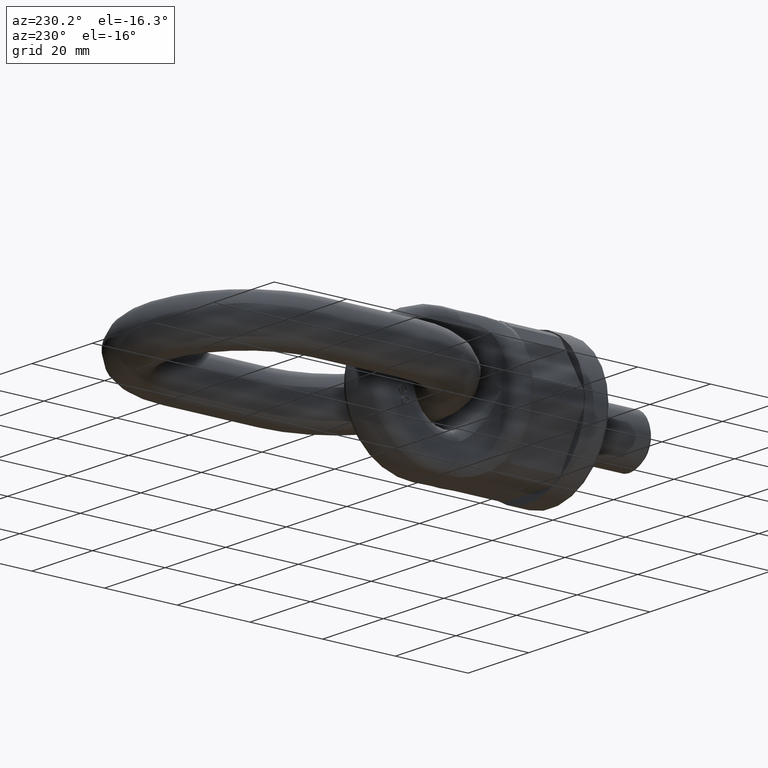
[diagram: clean part render]
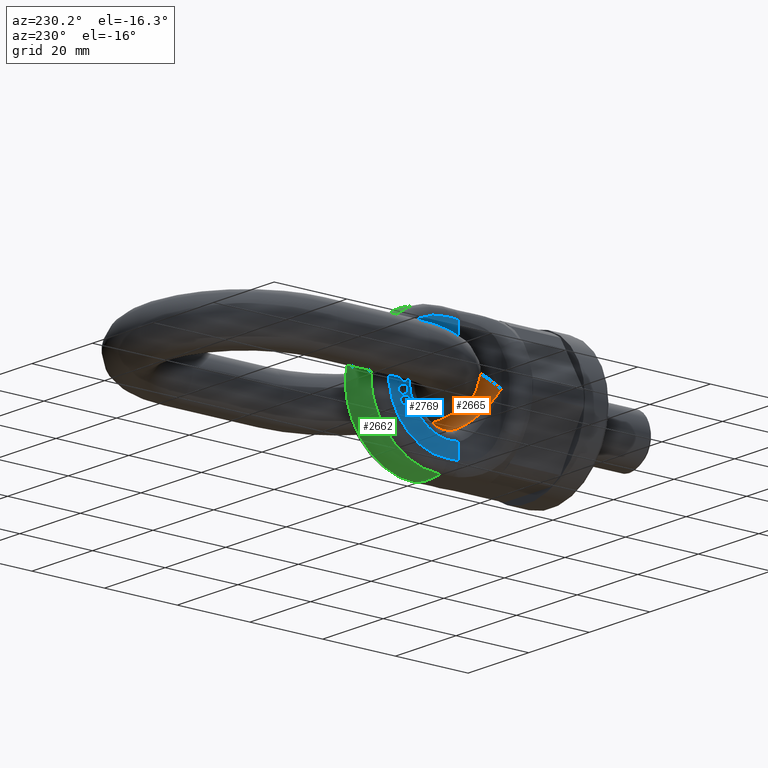
[diagram: same view with three faces highlighted in distinct colors, each labeled with its STEP entity id]
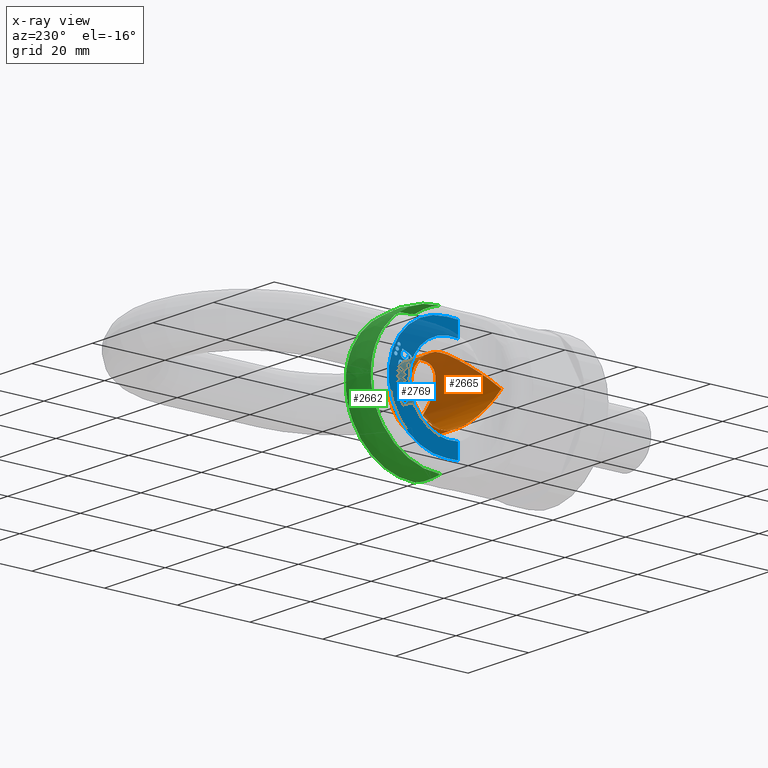
[diagram: x-ray of the same camera — body ghosted, the three highlighted faces saturated]
A machine part, auxiliary view with three faces highlighted in distinct colors.
The next image is the same camera in x-ray (body ghosted, the three faces saturated) — at least one of them is partly hidden behind the body in this view.
Their STEP definitions:

[orange] entity #2665 — the highlighted cylindrical surface (bore or boss wall) has radius 8.5 mm, axis along (-1, 0, 0).
#357=B_SPLINE_CURVE_WITH_KNOTS('',3,(#7096,#7097,#7098,#7099,#7100,#7101,
#7102,#7103),.UNSPECIFIED.,.F.,.F.,(4,2,2,4),(0.,0.25,0.5,1.),
 .UNSPECIFIED.);
#358=B_SPLINE_CURVE_WITH_KNOTS('',3,(#7104,#7105,#7106,#7107,#7108,#7109,
#7110,#7111),.UNSPECIFIED.,.F.,.F.,(4,2,2,4),(0.,0.5,0.75,1.),
 .UNSPECIFIED.);
#359=B_SPLINE_CURVE_WITH_KNOTS('',3,(#7115,#7116,#7117,#7118,#7119,#7120,
#7121,#7122),.UNSPECIFIED.,.F.,.F.,(4,2,2,4),(0.,0.25,0.5,1.),
 .UNSPECIFIED.);
#360=B_SPLINE_CURVE_WITH_KNOTS('',3,(#7124,#7125,#7126,#7127,#7128,#7129,
#7130,#7131),.UNSPECIFIED.,.F.,.F.,(4,2,2,4),(0.,0.5,0.75,1.),
 .UNSPECIFIED.);
#2022=CYLINDRICAL_SURFACE('',#5658,8.5);
#2665=ADVANCED_FACE('',(#3010,#3011),#2022,.F.);
#3010=FACE_BOUND('',#3101,.T.);
#3011=FACE_BOUND('',#3102,.T.);
#3101=EDGE_LOOP('',(#3534,#3535,#3536));
#3102=EDGE_LOOP('',(#3537,#3538,#3539));
#3534=ORIENTED_EDGE('',*,*,#5074,.T.);
#3535=ORIENTED_EDGE('',*,*,#5075,.T.);
#3536=ORIENTED_EDGE('',*,*,#5076,.T.);
#3537=ORIENTED_EDGE('',*,*,#5077,.T.);
#3538=ORIENTED_EDGE('',*,*,#5078,.T.);
#3539=ORIENTED_EDGE('',*,*,#5079,.T.);
#4642=VERTEX_POINT('',#6972);
#4658=VERTEX_POINT('',#7094);
#4659=VERTEX_POINT('',#7095);
#4660=VERTEX_POINT('',#7113);
#4661=VERTEX_POINT('',#7114);
#4662=VERTEX_POINT('',#7123);
#5074=EDGE_CURVE('',#4658,#4659,#5561,.T.);
#5075=EDGE_CURVE('',#4659,#4642,#357,.T.);
#5076=EDGE_CURVE('',#4642,#4658,#358,.T.);
#5077=EDGE_CURVE('',#4660,#4661,#5562,.T.);
#5078=EDGE_CURVE('',#4661,#4662,#359,.T.);
#5079=EDGE_CURVE('',#4662,#4660,#360,.T.);
#5561=CIRCLE('',#5656,8.5);
#5562=CIRCLE('',#5657,8.5);
#5656=AXIS2_PLACEMENT_3D('',#7093,#5983,#5984);
#5657=AXIS2_PLACEMENT_3D('',#7112,#5985,#5986);
#5658=AXIS2_PLACEMENT_3D('',#7132,#5987,#5988);
#5983=DIRECTION('',(1.,-3.58908305374512E-16,0.));
#5984=DIRECTION('',(3.57148950936401E-16,1.,0.));
#5985=DIRECTION('',(-1.,-3.58908305374512E-16,-2.34291072916505E-15));
#5986=DIRECTION('',(-3.57148950936401E-16,1.,-9.06319973829287E-31));
#5987=DIRECTION('',(-1.,0.,0.));
#5988=DIRECTION('',(0.,0.,1.));
#6972=CARTESIAN_POINT('',(13.,25.,0.));
#7093=CARTESIAN_POINT('',(3.5,33.5,0.));
#7094=CARTESIAN_POINT('',(3.5,32.0217391304348,-8.37046861301757));
#7095=CARTESIAN_POINT('',(3.5,32.0217391304348,8.37046861301757));
#7096=CARTESIAN_POINT('',(3.5,32.0217391304348,8.37046861301757));
#7097=CARTESIAN_POINT('',(3.5,30.718801039141,8.14036412486142));
#7098=CARTESIAN_POINT('',(3.99554953904714,29.5519251802337,7.60966337603335));
#7099=CARTESIAN_POINT('',(5.35751875583322,27.7221647485428,6.33331597869827));
#7100=CARTESIAN_POINT('',(6.20872425476971,27.0370475415328,5.59970090486852));
#7101=CARTESIAN_POINT('',(8.95015468242651,25.4413897059657,3.28852838614067));
#7102=CARTESIAN_POINT('',(10.9825838840881,25.,1.640603798999));
#7103=CARTESIAN_POINT('',(13.,25.,0.));
#7104=CARTESIAN_POINT('',(13.,25.,0.));
#7105=CARTESIAN_POINT('',(10.9825838840881,25.,-1.640603798999));
#7106=CARTESIAN_POINT('',(8.95015468242651,25.4413897059657,-3.28852838614067));
#7107=CARTESIAN_POINT('',(6.20872425476971,27.0370475415328,-5.59970090486852));
#7108=CARTESIAN_POINT('',(5.35751875583322,27.7221647485428,-6.33331597869827));
#7109=CARTESIAN_POINT('',(3.99554953904714,29.5519251802337,-7.60966337603335));
#7110=CARTESIAN_POINT('',(3.5,30.718801039141,-8.14036412486142));
#7111=CARTESIAN_POINT('',(3.5,32.0217391304348,-8.37046861301757));
#7112=CARTESIAN_POINT('',(-3.5,33.5,-8.20018755207767E-15));
#7113=CARTESIAN_POINT('',(-3.50000000000002,32.0217391304348,8.37046861301756));
#7114=CARTESIAN_POINT('',(-3.49999999999998,32.0217391304348,-8.37046861301758));
#7115=CARTESIAN_POINT('',(-3.49999999999998,32.0217391304348,-8.37046861301758));
#7116=CARTESIAN_POINT('',(-3.49999999999998,30.718801039141,-8.14036412486142));
#7117=CARTESIAN_POINT('',(-3.99554953904713,29.5519251802337,-7.60966337603336));
#7118=CARTESIAN_POINT('',(-5.3575187558332,27.7221647485428,-6.33331597869828));
#7119=CARTESIAN_POINT('',(-6.20872425476969,27.0370475415328,-5.59970090486853));
#7120=CARTESIAN_POINT('',(-8.9501546824265,25.4413897059657,-3.28852838614069));
#7121=CARTESIAN_POINT('',(-10.9825838840881,25.,-1.64060379899902));
#7122=CARTESIAN_POINT('',(-13.,25.,-3.04578394791456E-14));
#7123=CARTESIAN_POINT('',(-13.,25.,-3.04578394791456E-14));
#7124=CARTESIAN_POINT('',(-13.,25.,-3.04578394791456E-14));
#7125=CARTESIAN_POINT('',(-10.9825838840881,25.,1.64060379899897));
#7126=CARTESIAN_POINT('',(-8.95015468242652,25.4413897059657,3.28852838614065));
#7127=CARTESIAN_POINT('',(-6.20872425476972,27.0370475415328,5.5997009048685));
#7128=CARTESIAN_POINT('',(-5.35751875583323,27.7221647485428,6.33331597869826));
#7129=CARTESIAN_POINT('',(-3.99554953904716,29.5519251802337,7.60966337603334));
#7130=CARTESIAN_POINT('',(-3.50000000000002,30.718801039141,8.14036412486141));
#7131=CARTESIAN_POINT('',(-3.50000000000002,32.0217391304348,8.37046861301756));
#7132=CARTESIAN_POINT('',(20.625703362156,33.5,0.));

[blue] entity #2769 — the highlighted planar face has unit normal (-1, -0, -0).
#497=B_SPLINE_CURVE_WITH_KNOTS('',3,(#8250,#8251,#8252,#8253,#8254,#8255),
 .UNSPECIFIED.,.F.,.F.,(4,2,4),(0.,0.670501232539029,1.),.UNSPECIFIED.);
#498=B_SPLINE_CURVE_WITH_KNOTS('',3,(#8257,#8258,#8259,#8260),
 .UNSPECIFIED.,.F.,.F.,(4,4),(0.,1.),.UNSPECIFIED.);
#499=B_SPLINE_CURVE_WITH_KNOTS('',3,(#8262,#8263,#8264,#8265,#8266,#8267),
 .UNSPECIFIED.,.F.,.F.,(4,2,4),(0.,0.470198675496691,1.),.UNSPECIFIED.);
#500=B_SPLINE_CURVE_WITH_KNOTS('',3,(#8269,#8270,#8271,#8272),
 .UNSPECIFIED.,.F.,.F.,(4,4),(0.,1.),.UNSPECIFIED.);
#501=B_SPLINE_CURVE_WITH_KNOTS('',3,(#8276,#8277,#8278,#8279),
 .UNSPECIFIED.,.F.,.F.,(4,4),(0.,1.),.UNSPECIFIED.);
#502=B_SPLINE_CURVE_WITH_KNOTS('',3,(#8281,#8282,#8283,#8284,#8285,#8286),
 .UNSPECIFIED.,.F.,.F.,(4,2,4),(0.,0.44419642857143,1.),.UNSPECIFIED.);
#503=B_SPLINE_CURVE_WITH_KNOTS('',3,(#8288,#8289,#8290,#8291,#8292,#8293),
 .UNSPECIFIED.,.F.,.F.,(4,2,4),(0.,0.499999999999989,1.),.UNSPECIFIED.);
#504=B_SPLINE_CURVE_WITH_KNOTS('',3,(#8295,#8296,#8297,#8298,#8299,#8300,
#8301,#8302,#8303,#8304,#8305,#8306,#8307,#8308),.UNSPECIFIED.,.F.,.F.,
(4,2,2,2,2,2,4),(0.,0.149537296690972,0.323681996634885,0.497826696578798,
0.672812675266404,0.84779865395401,1.),.UNSPECIFIED.);
#505=B_SPLINE_CURVE_WITH_KNOTS('',3,(#8313,#8314,#8315,#8316),
 .UNSPECIFIED.,.F.,.F.,(4,4),(0.,1.),.UNSPECIFIED.);
#506=B_SPLINE_CURVE_WITH_KNOTS('',3,(#8321,#8322,#8323,#8324),
 .UNSPECIFIED.,.F.,.F.,(4,4),(0.,1.),.UNSPECIFIED.);
#507=B_SPLINE_CURVE_WITH_KNOTS('',3,(#8326,#8327,#8328,#8329,#8330,#8331),
 .UNSPECIFIED.,.F.,.F.,(4,2,4),(0.,0.565320665083137,1.),.UNSPECIFIED.);
#508=B_SPLINE_CURVE_WITH_KNOTS('',3,(#8333,#8334,#8335,#8336),
 .UNSPECIFIED.,.F.,.F.,(4,4),(0.,1.),.UNSPECIFIED.);
#509=B_SPLINE_CURVE_WITH_KNOTS('',3,(#8340,#8341,#8342,#8343),
 .UNSPECIFIED.,.F.,.F.,(4,4),(0.,1.),.UNSPECIFIED.);
#510=B_SPLINE_CURVE_WITH_KNOTS('',3,(#8345,#8346,#8347,#8348,#8349,#8350),
 .UNSPECIFIED.,.F.,.F.,(4,2,4),(0.,0.429530201342282,1.),.UNSPECIFIED.);
#511=B_SPLINE_CURVE_WITH_KNOTS('',3,(#8352,#8353,#8354,#8355,#8356,#8357,
#8358,#8359,#8360,#8361,#8362,#8363),.UNSPECIFIED.,.F.,.F.,(4,2,2,2,2,4),
(0.,0.253866185683644,0.504362466247593,0.754858746811536,0.877429373405769,
1.),.UNSPECIFIED.);
#512=B_SPLINE_CURVE_WITH_KNOTS('',3,(#8377,#8378,#8379,#8380),
 .UNSPECIFIED.,.F.,.F.,(4,4),(0.,1.),.UNSPECIFIED.);
#513=B_SPLINE_CURVE_WITH_KNOTS('',3,(#8384,#8385,#8386,#8387),
 .UNSPECIFIED.,.F.,.F.,(4,4),(0.,1.),.UNSPECIFIED.);
#514=B_SPLINE_CURVE_WITH_KNOTS('',3,(#8397,#8398,#8399,#8400),
 .UNSPECIFIED.,.F.,.F.,(4,4),(0.,1.),.UNSPECIFIED.);
#515=B_SPLINE_CURVE_WITH_KNOTS('',3,(#8402,#8403,#8404,#8405),
 .UNSPECIFIED.,.F.,.F.,(4,4),(0.,1.),.UNSPECIFIED.);
#516=B_SPLINE_CURVE_WITH_KNOTS('',3,(#8427,#8428,#8429,#8430),
 .UNSPECIFIED.,.F.,.F.,(4,4),(0.,1.),.UNSPECIFIED.);
#517=B_SPLINE_CURVE_WITH_KNOTS('',3,(#8435,#8436,#8437,#8438),
 .UNSPECIFIED.,.F.,.F.,(4,4),(0.,1.),.UNSPECIFIED.);
#518=B_SPLINE_CURVE_WITH_KNOTS('',3,(#8443,#8444,#8445,#8446),
 .UNSPECIFIED.,.F.,.F.,(4,4),(0.,1.),.UNSPECIFIED.);
#519=B_SPLINE_CURVE_WITH_KNOTS('',3,(#8448,#8449,#8450,#8451,#8452,#8453,
#8454,#8455,#8456,#8457),.UNSPECIFIED.,.F.,.F.,(4,2,2,2,4),(0.,0.296954694318529,
0.533565653962701,0.771641518085901,1.),.UNSPECIFIED.);
#520=B_SPLINE_CURVE_WITH_KNOTS('',3,(#8459,#8460,#8461,#8462),
 .UNSPECIFIED.,.F.,.F.,(4,4),(0.,1.),.UNSPECIFIED.);
#521=B_SPLINE_CURVE_WITH_KNOTS('',3,(#8466,#8467,#8468,#8469),
 .UNSPECIFIED.,.F.,.F.,(4,4),(0.,1.),.UNSPECIFIED.);
#522=B_SPLINE_CURVE_WITH_KNOTS('',3,(#8471,#8472,#8473,#8474),
 .UNSPECIFIED.,.F.,.F.,(4,4),(0.,1.),.UNSPECIFIED.);
#523=B_SPLINE_CURVE_WITH_KNOTS('',3,(#8476,#8477,#8478,#8479),
 .UNSPECIFIED.,.F.,.F.,(4,4),(0.,1.),.UNSPECIFIED.);
#524=B_SPLINE_CURVE_WITH_KNOTS('',3,(#8481,#8482,#8483,#8484),
 .UNSPECIFIED.,.F.,.F.,(4,4),(0.,1.),.UNSPECIFIED.);
#525=B_SPLINE_CURVE_WITH_KNOTS('',3,(#8486,#8487,#8488,#8489,#8490,#8491),
 .UNSPECIFIED.,.F.,.F.,(4,2,4),(0.,0.440217391304353,1.),.UNSPECIFIED.);
#526=B_SPLINE_CURVE_WITH_KNOTS('',3,(#8493,#8494,#8495,#8496),
 .UNSPECIFIED.,.F.,.F.,(4,4),(0.,1.),.UNSPECIFIED.);
#527=B_SPLINE_CURVE_WITH_KNOTS('',3,(#8500,#8501,#8502,#8503),
 .UNSPECIFIED.,.F.,.F.,(4,4),(0.,1.),.UNSPECIFIED.);
#528=B_SPLINE_CURVE_WITH_KNOTS('',3,(#8505,#8506,#8507,#8508,#8509,#8510),
 .UNSPECIFIED.,.F.,.F.,(4,2,4),(0.,0.523876404494381,1.),.UNSPECIFIED.);
#529=B_SPLINE_CURVE_WITH_KNOTS('',3,(#8512,#8513,#8514,#8515),
 .UNSPECIFIED.,.F.,.F.,(4,4),(0.,1.),.UNSPECIFIED.);
#530=B_SPLINE_CURVE_WITH_KNOTS('',3,(#8517,#8518,#8519,#8520,#8521,#8522,
#8523,#8524),.UNSPECIFIED.,.F.,.F.,(4,2,2,4),(0.,0.269230769230767,0.527644230769239,
1.),.UNSPECIFIED.);
#531=B_SPLINE_CURVE_WITH_KNOTS('',3,(#8528,#8529,#8530,#8531),
 .UNSPECIFIED.,.F.,.F.,(4,4),(0.,1.),.UNSPECIFIED.);
#532=B_SPLINE_CURVE_WITH_KNOTS('',3,(#8533,#8534,#8535,#8536),
 .UNSPECIFIED.,.F.,.F.,(4,4),(0.,1.),.UNSPECIFIED.);
#533=B_SPLINE_CURVE_WITH_KNOTS('',3,(#8538,#8539,#8540,#8541,#8542,#8543,
#8544,#8545,#8546,#8547),.UNSPECIFIED.,.F.,.F.,(4,2,2,2,4),(0.,0.245990994549328,
0.507925849856484,0.769860705163647,1.),.UNSPECIFIED.);
#2173=LINE('',#8247,#2475);
#2174=LINE('',#8274,#2476);
#2175=LINE('',#8310,#2477);
#2176=LINE('',#8312,#2478);
#2177=LINE('',#8319,#2479);
#2178=LINE('',#8338,#2480);
#2179=LINE('',#8370,#2481);
#2180=LINE('',#8375,#2482);
#2181=LINE('',#8388,#2483);
#2182=LINE('',#8391,#2484);
#2183=LINE('',#8393,#2485);
#2184=LINE('',#8395,#2486);
#2185=LINE('',#8407,#2487);
#2186=LINE('',#8409,#2488);
#2187=LINE('',#8411,#2489);
#2188=LINE('',#8413,#2490);
#2189=LINE('',#8415,#2491);
#2190=LINE('',#8417,#2492);
#2191=LINE('',#8419,#2493);
#2192=LINE('',#8421,#2494);
#2193=LINE('',#8423,#2495);
#2194=LINE('',#8425,#2496);
#2195=LINE('',#8432,#2497);
#2196=LINE('',#8434,#2498);
#2197=LINE('',#8441,#2499);
#2198=LINE('',#8464,#2500);
#2199=LINE('',#8498,#2501);
#2200=LINE('',#8525,#2502);
#2201=LINE('',#8549,#2503);
#2202=LINE('',#8551,#2504);
#2203=LINE('',#8553,#2505);
#2204=LINE('',#8555,#2506);
#2205=LINE('',#8557,#2507);
#2206=LINE('',#8559,#2508);
#2475=VECTOR('',#6239,1.);
#2476=VECTOR('',#6240,1.);
#2477=VECTOR('',#6241,1.);
#2478=VECTOR('',#6242,1.);
#2479=VECTOR('',#6243,1.);
#2480=VECTOR('',#6244,1.);
#2481=VECTOR('',#6251,1.);
#2482=VECTOR('',#6254,1.);
#2483=VECTOR('',#6257,1.);
#2484=VECTOR('',#6258,1.);
#2485=VECTOR('',#6259,1.);
#2486=VECTOR('',#6260,1.);
#2487=VECTOR('',#6261,1.);
#2488=VECTOR('',#6262,1.);
#2489=VECTOR('',#6263,1.);
#2490=VECTOR('',#6264,1.);
#2491=VECTOR('',#6265,1.);
#2492=VECTOR('',#6266,1.);
#2493=VECTOR('',#6267,1.);
#2494=VECTOR('',#6268,1.);
#2495=VECTOR('',#6269,1.);
#2496=VECTOR('',#6270,1.);
#2497=VECTOR('',#6271,1.);
#2498=VECTOR('',#6272,1.);
#2499=VECTOR('',#6273,1.);
#2500=VECTOR('',#6274,1.);
#2501=VECTOR('',#6275,1.);
#2502=VECTOR('',#6276,1.);
#2503=VECTOR('',#6277,1.);
#2504=VECTOR('',#6278,1.);
#2505=VECTOR('',#6279,1.);
#2506=VECTOR('',#6280,1.);
#2507=VECTOR('',#6281,1.);
#2508=VECTOR('',#6282,1.);
#2769=ADVANCED_FACE('',(#3026,#3027,#3028,#3029,#3030,#3031,#3032,#3033,
#3034),#2938,.T.);
#2938=PLANE('',#5726);
#3026=FACE_BOUND('',#3213,.T.);
#3027=FACE_BOUND('',#3214,.T.);
#3028=FACE_BOUND('',#3215,.T.);
#3029=FACE_BOUND('',#3216,.T.);
#3030=FACE_BOUND('',#3217,.T.);
#3031=FACE_BOUND('',#3218,.T.);
#3032=FACE_BOUND('',#3219,.T.);
#3033=FACE_BOUND('',#3220,.T.);
#3034=FACE_BOUND('',#3221,.T.);
#3213=EDGE_LOOP('',(#3990,#3991,#3992,#3993,#3994,#3995,#3996,#3997,#3998,
#3999,#4000,#4001));
#3214=EDGE_LOOP('',(#4002,#4003,#4004,#4005,#4006,#4007,#4008,#4009,#4010));
#3215=EDGE_LOOP('',(#4011));
#3216=EDGE_LOOP('',(#4012));
#3217=EDGE_LOOP('',(#4013));
#3218=EDGE_LOOP('',(#4014,#4015,#4016,#4017,#4018,#4019));
#3219=EDGE_LOOP('',(#4020,#4021,#4022,#4023,#4024,#4025,#4026,#4027,#4028,
#4029,#4030,#4031,#4032,#4033,#4034,#4035,#4036,#4037,#4038));
#3220=EDGE_LOOP('',(#4039,#4040,#4041,#4042,#4043,#4044,#4045,#4046,#4047,
#4048,#4049,#4050,#4051,#4052,#4053,#4054,#4055));
#3221=EDGE_LOOP('',(#4056,#4057,#4058,#4059,#4060,#4061,#4062,#4063,#4064,
#4065));
#3990=ORIENTED_EDGE('',*,*,#5261,.T.);
#3991=ORIENTED_EDGE('',*,*,#5262,.T.);
#3992=ORIENTED_EDGE('',*,*,#5263,.T.);
#3993=ORIENTED_EDGE('',*,*,#5264,.T.);
#3994=ORIENTED_EDGE('',*,*,#5265,.T.);
#3995=ORIENTED_EDGE('',*,*,#5266,.T.);
#3996=ORIENTED_EDGE('',*,*,#5267,.T.);
#3997=ORIENTED_EDGE('',*,*,#5268,.T.);
#3998=ORIENTED_EDGE('',*,*,#5269,.T.);
#3999=ORIENTED_EDGE('',*,*,#5270,.T.);
#4000=ORIENTED_EDGE('',*,*,#5271,.T.);
#4001=ORIENTED_EDGE('',*,*,#5272,.T.);
#4002=ORIENTED_EDGE('',*,*,#5273,.T.);
#4003=ORIENTED_EDGE('',*,*,#5274,.T.);
#4004=ORIENTED_EDGE('',*,*,#5275,.T.);
#4005=ORIENTED_EDGE('',*,*,#5276,.T.);
#4006=ORIENTED_EDGE('',*,*,#5277,.T.);
#4007=ORIENTED_EDGE('',*,*,#5278,.T.);
#4008=ORIENTED_EDGE('',*,*,#5279,.T.);
#4009=ORIENTED_EDGE('',*,*,#5280,.T.);
#4010=ORIENTED_EDGE('',*,*,#5281,.T.);
#4011=ORIENTED_EDGE('',*,*,#5282,.T.);
#4012=ORIENTED_EDGE('',*,*,#5283,.T.);
#4013=ORIENTED_EDGE('',*,*,#5284,.T.);
#4014=ORIENTED_EDGE('',*,*,#5285,.T.);
#4015=ORIENTED_EDGE('',*,*,#5286,.T.);
#4016=ORIENTED_EDGE('',*,*,#5287,.T.);
#4017=ORIENTED_EDGE('',*,*,#5288,.T.);
#4018=ORIENTED_EDGE('',*,*,#5289,.T.);
#4019=ORIENTED_EDGE('',*,*,#5290,.T.);
#4020=ORIENTED_EDGE('',*,*,#5291,.T.);
#4021=ORIENTED_EDGE('',*,*,#5292,.T.);
#4022=ORIENTED_EDGE('',*,*,#5293,.T.);
#4023=ORIENTED_EDGE('',*,*,#5294,.T.);
#4024=ORIENTED_EDGE('',*,*,#5295,.T.);
#4025=ORIENTED_EDGE('',*,*,#5296,.T.);
#4026=ORIENTED_EDGE('',*,*,#5297,.T.);
#4027=ORIENTED_EDGE('',*,*,#5298,.T.);
#4028=ORIENTED_EDGE('',*,*,#5299,.T.);
#4029=ORIENTED_EDGE('',*,*,#5300,.T.);
#4030=ORIENTED_EDGE('',*,*,#5301,.T.);
#4031=ORIENTED_EDGE('',*,*,#5302,.T.);
#4032=ORIENTED_EDGE('',*,*,#5303,.T.);
#4033=ORIENTED_EDGE('',*,*,#5304,.T.);
#4034=ORIENTED_EDGE('',*,*,#5305,.T.);
#4035=ORIENTED_EDGE('',*,*,#5306,.T.);
#4036=ORIENTED_EDGE('',*,*,#5307,.T.);
#4037=ORIENTED_EDGE('',*,*,#5308,.T.);
#4038=ORIENTED_EDGE('',*,*,#5309,.T.);
#4039=ORIENTED_EDGE('',*,*,#5310,.T.);
#4040=ORIENTED_EDGE('',*,*,#5311,.T.);
#4041=ORIENTED_EDGE('',*,*,#5312,.T.);
#4042=ORIENTED_EDGE('',*,*,#5313,.T.);
#4043=ORIENTED_EDGE('',*,*,#5314,.T.);
#4044=ORIENTED_EDGE('',*,*,#5315,.T.);
#4045=ORIENTED_EDGE('',*,*,#5316,.T.);
#4046=ORIENTED_EDGE('',*,*,#5317,.T.);
#4047=ORIENTED_EDGE('',*,*,#5318,.T.);
#4048=ORIENTED_EDGE('',*,*,#5319,.T.);
#4049=ORIENTED_EDGE('',*,*,#5320,.T.);
#4050=ORIENTED_EDGE('',*,*,#5321,.T.);
#4051=ORIENTED_EDGE('',*,*,#5322,.T.);
#4052=ORIENTED_EDGE('',*,*,#5323,.T.);
#4053=ORIENTED_EDGE('',*,*,#5324,.T.);
#4054=ORIENTED_EDGE('',*,*,#5325,.T.);
#4055=ORIENTED_EDGE('',*,*,#5326,.T.);
#4056=ORIENTED_EDGE('',*,*,#5327,.T.);
#4057=ORIENTED_EDGE('',*,*,#5328,.T.);
#4058=ORIENTED_EDGE('',*,*,#5329,.T.);
#4059=ORIENTED_EDGE('',*,*,#5330,.T.);
#4060=ORIENTED_EDGE('',*,*,#5331,.T.);
#4061=ORIENTED_EDGE('',*,*,#5332,.T.);
#4062=ORIENTED_EDGE('',*,*,#5333,.T.);
#4063=ORIENTED_EDGE('',*,*,#5334,.T.);
#4064=ORIENTED_EDGE('',*,*,#5335,.T.);
#4065=ORIENTED_EDGE('',*,*,#5336,.T.);
#4757=VERTEX_POINT('',#8248);
#4758=VERTEX_POINT('',#8249);
#4759=VERTEX_POINT('',#8256);
#4760=VERTEX_POINT('',#8261);
#4761=VERTEX_POINT('',#8268);
#4762=VERTEX_POINT('',#8273);
#4763=VERTEX_POINT('',#8275);
#4764=VERTEX_POINT('',#8280);
#4765=VERTEX_POINT('',#8287);
#4766=VERTEX_POINT('',#8294);
#4767=VERTEX_POINT('',#8309);
#4768=VERTEX_POINT('',#8311);
#4769=VERTEX_POINT('',#8317);
#4770=VERTEX_POINT('',#8318);
#4771=VERTEX_POINT('',#8320);
#4772=VERTEX_POINT('',#8325);
#4773=VERTEX_POINT('',#8332);
#4774=VERTEX_POINT('',#8337);
#4775=VERTEX_POINT('',#8339);
#4776=VERTEX_POINT('',#8344);
#4777=VERTEX_POINT('',#8351);
#4778=VERTEX_POINT('',#8365);
#4779=VERTEX_POINT('',#8367);
#4780=VERTEX_POINT('',#8369);
#4781=VERTEX_POINT('',#8371);
#4782=VERTEX_POINT('',#8372);
#4783=VERTEX_POINT('',#8374);
#4784=VERTEX_POINT('',#8376);
#4785=VERTEX_POINT('',#8381);
#4786=VERTEX_POINT('',#8383);
#4787=VERTEX_POINT('',#8389);
#4788=VERTEX_POINT('',#8390);
#4789=VERTEX_POINT('',#8392);
#4790=VERTEX_POINT('',#8394);
#4791=VERTEX_POINT('',#8396);
#4792=VERTEX_POINT('',#8401);
#4793=VERTEX_POINT('',#8406);
#4794=VERTEX_POINT('',#8408);
#4795=VERTEX_POINT('',#8410);
#4796=VERTEX_POINT('',#8412);
#4797=VERTEX_POINT('',#8414);
#4798=VERTEX_POINT('',#8416);
#4799=VERTEX_POINT('',#8418);
#4800=VERTEX_POINT('',#8420);
#4801=VERTEX_POINT('',#8422);
#4802=VERTEX_POINT('',#8424);
#4803=VERTEX_POINT('',#8426);
#4804=VERTEX_POINT('',#8431);
#4805=VERTEX_POINT('',#8433);
#4806=VERTEX_POINT('',#8439);
#4807=VERTEX_POINT('',#8440);
#4808=VERTEX_POINT('',#8442);
#4809=VERTEX_POINT('',#8447);
#4810=VERTEX_POINT('',#8458);
#4811=VERTEX_POINT('',#8463);
#4812=VERTEX_POINT('',#8465);
#4813=VERTEX_POINT('',#8470);
#4814=VERTEX_POINT('',#8475);
#4815=VERTEX_POINT('',#8480);
#4816=VERTEX_POINT('',#8485);
#4817=VERTEX_POINT('',#8492);
#4818=VERTEX_POINT('',#8497);
#4819=VERTEX_POINT('',#8499);
#4820=VERTEX_POINT('',#8504);
#4821=VERTEX_POINT('',#8511);
#4822=VERTEX_POINT('',#8516);
#4823=VERTEX_POINT('',#8526);
#4824=VERTEX_POINT('',#8527);
#4825=VERTEX_POINT('',#8532);
#4826=VERTEX_POINT('',#8537);
#4827=VERTEX_POINT('',#8548);
#4828=VERTEX_POINT('',#8550);
#4829=VERTEX_POINT('',#8552);
#4830=VERTEX_POINT('',#8554);
#4831=VERTEX_POINT('',#8556);
#4832=VERTEX_POINT('',#8558);
#5261=EDGE_CURVE('',#4757,#4758,#2173,.T.);
#5262=EDGE_CURVE('',#4758,#4759,#497,.T.);
#5263=EDGE_CURVE('',#4759,#4760,#498,.T.);
#5264=EDGE_CURVE('',#4760,#4761,#499,.T.);
#5265=EDGE_CURVE('',#4761,#4762,#500,.T.);
#5266=EDGE_CURVE('',#4762,#4763,#2174,.T.);
#5267=EDGE_CURVE('',#4763,#4764,#501,.T.);
#5268=EDGE_CURVE('',#4764,#4765,#502,.T.);
#5269=EDGE_CURVE('',#4765,#4766,#503,.T.);
#5270=EDGE_CURVE('',#4766,#4767,#504,.T.);
#5271=EDGE_CURVE('',#4767,#4768,#2175,.T.);
#5272=EDGE_CURVE('',#4768,#4757,#2176,.T.);
#5273=EDGE_CURVE('',#4769,#4770,#505,.T.);
#5274=EDGE_CURVE('',#4770,#4771,#2177,.T.);
#5275=EDGE_CURVE('',#4771,#4772,#506,.T.);
#5276=EDGE_CURVE('',#4772,#4773,#507,.T.);
#5277=EDGE_CURVE('',#4773,#4774,#508,.T.);
#5278=EDGE_CURVE('',#4774,#4775,#2178,.T.);
#5279=EDGE_CURVE('',#4775,#4776,#509,.T.);
#5280=EDGE_CURVE('',#4776,#4777,#510,.T.);
#5281=EDGE_CURVE('',#4777,#4769,#511,.T.);
#5282=EDGE_CURVE('',#4778,#4778,#5574,.T.);
#5283=EDGE_CURVE('',#4779,#4779,#5575,.T.);
#5284=EDGE_CURVE('',#4780,#4780,#5576,.T.);
#5285=EDGE_CURVE('',#4781,#4782,#2179,.T.);
#5286=EDGE_CURVE('',#4782,#4783,#5577,.T.);
#5287=EDGE_CURVE('',#4783,#4784,#2180,.T.);
#5288=EDGE_CURVE('',#4784,#4785,#512,.T.);
#5289=EDGE_CURVE('',#4785,#4786,#5578,.T.);
#5290=EDGE_CURVE('',#4786,#4781,#513,.T.);
#5291=EDGE_CURVE('',#4787,#4788,#2181,.T.);
#5292=EDGE_CURVE('',#4788,#4789,#2182,.T.);
#5293=EDGE_CURVE('',#4789,#4790,#2183,.T.);
#5294=EDGE_CURVE('',#4790,#4791,#2184,.T.);
#5295=EDGE_CURVE('',#4791,#4792,#514,.T.);
#5296=EDGE_CURVE('',#4792,#4793,#515,.T.);
#5297=EDGE_CURVE('',#4793,#4794,#2185,.T.);
#5298=EDGE_CURVE('',#4794,#4795,#2186,.T.);
#5299=EDGE_CURVE('',#4795,#4796,#2187,.T.);
#5300=EDGE_CURVE('',#4796,#4797,#2188,.T.);
#5301=EDGE_CURVE('',#4797,#4798,#2189,.T.);
#5302=EDGE_CURVE('',#4798,#4799,#2190,.T.);
#5303=EDGE_CURVE('',#4799,#4800,#2191,.T.);
#5304=EDGE_CURVE('',#4800,#4801,#2192,.T.);
#5305=EDGE_CURVE('',#4801,#4802,#2193,.T.);
#5306=EDGE_CURVE('',#4802,#4803,#2194,.T.);
#5307=EDGE_CURVE('',#4803,#4804,#516,.T.);
#5308=EDGE_CURVE('',#4804,#4805,#2195,.T.);
#5309=EDGE_CURVE('',#4805,#4787,#2196,.T.);
#5310=EDGE_CURVE('',#4806,#4807,#517,.T.);
#5311=EDGE_CURVE('',#4807,#4808,#2197,.T.);
#5312=EDGE_CURVE('',#4808,#4809,#518,.T.);
#5313=EDGE_CURVE('',#4809,#4810,#519,.T.);
#5314=EDGE_CURVE('',#4810,#4811,#520,.T.);
#5315=EDGE_CURVE('',#4811,#4812,#2198,.T.);
#5316=EDGE_CURVE('',#4812,#4813,#521,.T.);
#5317=EDGE_CURVE('',#4813,#4814,#522,.T.);
#5318=EDGE_CURVE('',#4814,#4815,#523,.T.);
#5319=EDGE_CURVE('',#4815,#4816,#524,.T.);
#5320=EDGE_CURVE('',#4816,#4817,#525,.T.);
#5321=EDGE_CURVE('',#4817,#4818,#526,.T.);
#5322=EDGE_CURVE('',#4818,#4819,#2199,.T.);
#5323=EDGE_CURVE('',#4819,#4820,#527,.T.);
#5324=EDGE_CURVE('',#4820,#4821,#528,.T.);
#5325=EDGE_CURVE('',#4821,#4822,#529,.T.);
#5326=EDGE_CURVE('',#4822,#4806,#530,.T.);
#5327=EDGE_CURVE('',#4823,#4824,#2200,.T.);
#5328=EDGE_CURVE('',#4824,#4825,#531,.T.);
#5329=EDGE_CURVE('',#4825,#4826,#532,.T.);
#5330=EDGE_CURVE('',#4826,#4827,#533,.T.);
#5331=EDGE_CURVE('',#4827,#4828,#2201,.T.);
#5332=EDGE_CURVE('',#4828,#4829,#2202,.T.);
#5333=EDGE_CURVE('',#4829,#4830,#2203,.T.);
#5334=EDGE_CURVE('',#4830,#4831,#2204,.T.);
#5335=EDGE_CURVE('',#4831,#4832,#2205,.T.);
#5336=EDGE_CURVE('',#4832,#4823,#2206,.T.);
#5574=CIRCLE('',#5721,0.450000000000001);
#5575=CIRCLE('',#5722,0.45);
#5576=CIRCLE('',#5723,0.45);
#5577=CIRCLE('',#5724,11.5);
#5578=CIRCLE('',#5725,15.612494995996);
#5721=AXIS2_PLACEMENT_3D('',#8364,#6245,#6246);
#5722=AXIS2_PLACEMENT_3D('',#8366,#6247,#6248);
#5723=AXIS2_PLACEMENT_3D('',#8368,#6249,#6250);
#5724=AXIS2_PLACEMENT_3D('',#8373,#6252,#6253);
#5725=AXIS2_PLACEMENT_3D('',#8382,#6255,#6256);
#5726=AXIS2_PLACEMENT_3D('',#8560,#6283,#6284);
#6239=DIRECTION('',(-2.04614792159336E-15,-0.368211928977285,0.929741886417315));
#6240=DIRECTION('',(-1.8433488804711E-15,-0.503618570678019,0.863926116787905));
#6241=DIRECTION('',(-2.04614792159269E-15,-0.368211928977806,0.929741886417109));
#6242=DIRECTION('',(-1.19637976389723E-15,0.929741886417306,0.368211928977306));
#6243=DIRECTION('',(2.36723330515817E-15,-0.201017182047663,-0.979587715583253));
#6244=DIRECTION('',(-2.36433366578737E-15,0.0812969326694324,0.996689926074575));
#6245=DIRECTION('',(1.,3.58908305374512E-16,2.34291072916505E-15));
#6246=DIRECTION('',(0.,0.999999999999995,0.));
#6247=DIRECTION('',(1.,3.58908305374512E-16,2.34291072916505E-15));
#6248=DIRECTION('',(0.,0.999999999999997,0.));
#6249=DIRECTION('',(1.,3.58908305374512E-16,2.34291072916505E-15));
#6250=DIRECTION('',(0.,0.999999999999997,0.));
#6251=DIRECTION('',(-2.34291072916505E-15,0.,1.));
#6252=DIRECTION('',(1.,3.58908305374512E-16,2.34291072916505E-15));
#6253=DIRECTION('',(-3.77113799125393E-16,1.,-8.03866411570325E-31));
#6254=DIRECTION('',(-2.34291072916505E-15,0.,1.));
#6255=DIRECTION('',(-1.,-3.58908305374512E-16,-2.34291072916505E-15));
#6256=DIRECTION('',(-3.33333681084611E-16,1.,-7.89492752262815E-31));
#6257=DIRECTION('',(-2.34308691187644E-15,0.000491674058107033,0.999999879128303));
#6258=DIRECTION('',(1.0536702012013E-15,-0.952743109206603,-0.303777168100788));
#6259=DIRECTION('',(2.34308691187645E-15,-0.000491674058134083,-0.999999879128303));
#6260=DIRECTION('',(2.61641182077453E-16,0.965713461955355,-0.259610302950794));
#6261=DIRECTION('',(2.34308691187686E-15,-0.000491674059267909,-0.999999879128302));
#6262=DIRECTION('',(9.41994366307915E-16,-0.967232542386331,-0.253892120690806));
#6263=DIRECTION('',(2.34308691187646E-15,-0.000491674058148933,-0.999999879128303));
#6264=DIRECTION('',(3.57525711577635E-16,0.954318836261024,-0.298790158401183));
#6265=DIRECTION('',(-2.34308691187645E-15,0.000491674058134082,0.999999879128303));
#6266=DIRECTION('',(-2.86853820601209E-16,-0.962877936336791,0.269937177350218));
#6267=DIRECTION('',(-9.27073345932861E-16,0.968949017860515,0.247260592871456));
#6268=DIRECTION('',(-9.68262237364266E-16,0.964087288722306,0.265585578908329));
#6269=DIRECTION('',(-2.34308691187644E-15,0.000491674058102009,0.999999879128303));
#6270=DIRECTION('',(-2.46854777710114E-16,-0.967323383142026,0.253545799465631));
#6271=DIRECTION('',(-2.34308691187657E-15,0.000491674058460106,0.999999879128303));
#6272=DIRECTION('',(-1.01580354873829E-15,0.957986996492914,0.286811636009571));
#6273=DIRECTION('',(2.22374760849316E-15,0.200053809240147,-0.979784911808968));
#6274=DIRECTION('',(-2.31940528339711E-15,-0.055448631056158,0.998461541229305));
#6275=DIRECTION('',(2.10178228464252E-15,0.322670677935017,-0.946511296076786));
#6276=DIRECTION('',(-2.30993525665569E-15,0.369126010774223,0.929379356436277));
#6277=DIRECTION('',(2.30993525665574E-15,-0.369126010774142,-0.929379356436309));
#6278=DIRECTION('',(-5.31267321187173E-16,-0.929379356436445,0.369126010773801));
#6279=DIRECTION('',(2.30993525665593E-15,-0.369126010773798,-0.929379356436446));
#6280=DIRECTION('',(5.31267321187177E-16,0.929379356436444,-0.369126010773803));
#6281=DIRECTION('',(-2.30993525665595E-15,0.369126010773771,0.929379356436457));
#6282=DIRECTION('',(-5.31267321187206E-16,-0.929379356436439,0.369126010773815));
#6283=DIRECTION('',(-1.,-3.58908305374512E-16,-2.34291072916505E-15));
#6284=DIRECTION('',(-3.59087759527199E-16,1.,0.));
#8247=CARTESIAN_POINT('',(-6.49999999999996,57.074716069725,-19.6822995267498));
#8248=CARTESIAN_POINT('',(-6.50000000000002,46.932920482924,5.92592068143584));
#8249=CARTESIAN_POINT('',(-6.50000000000002,46.8055426854071,6.24755196068322));
#8250=CARTESIAN_POINT('',(-6.50000000000002,46.8055426854071,6.24755196068322));
#8251=CARTESIAN_POINT('',(-6.50000000000002,46.2232945048111,6.0169602998655));
#8252=CARTESIAN_POINT('',(-6.50000000000002,45.6410463242151,5.78636863904779));
#8253=CARTESIAN_POINT('',(-6.50000000000002,44.7726688293803,5.44245926255863));
#8254=CARTESIAN_POINT('',(-6.50000000000002,44.5701083795445,5.32864171764065));
#8255=CARTESIAN_POINT('',(-6.50000000000002,44.4511167941118,5.21432434347616));
#8256=CARTESIAN_POINT('',(-6.50000000000002,44.4511167941118,5.21432434347616));
#8257=CARTESIAN_POINT('',(-6.50000000000002,44.4511167941118,5.21432434347616));
#8258=CARTESIAN_POINT('',(-6.50000000000002,44.3328387481161,5.10028955713129));
#8259=CARTESIAN_POINT('',(-6.50000000000002,44.264071112842,4.95294874637928));
#8260=CARTESIAN_POINT('',(-6.50000000000002,44.2442388192263,4.77375397117157));
#8261=CARTESIAN_POINT('',(-6.50000000000002,44.2442388192263,4.77375397117157));
#8262=CARTESIAN_POINT('',(-6.50000000000002,44.2442388192263,4.77375397117157));
#8263=CARTESIAN_POINT('',(-6.50000000000002,44.2239805207051,4.59355057816851));
#8264=CARTESIAN_POINT('',(-6.50000000000002,44.2548942773903,4.40085693401133));
#8265=CARTESIAN_POINT('',(-6.50000000000001,44.4285651345014,3.96233482867179));
#8266=CARTESIAN_POINT('',(-6.50000000000001,44.5559981544769,3.78854856034619));
#8267=CARTESIAN_POINT('',(-6.50000000000001,44.7192791492082,3.67431423372321));
#8268=CARTESIAN_POINT('',(-6.50000000000001,44.7192791492082,3.67431423372321));
#8269=CARTESIAN_POINT('',(-6.50000000000001,44.7192791492082,3.67431423372321));
#8270=CARTESIAN_POINT('',(-6.50000000000001,44.882134139034,3.55907128930488));
#8271=CARTESIAN_POINT('',(-6.50000000000001,45.0788674882101,3.54795507385143));
#8272=CARTESIAN_POINT('',(-6.50000000000001,45.3093407263627,3.63923093959178));
#8273=CARTESIAN_POINT('',(-6.50000000000001,45.3093407263627,3.63923093959178));
#8274=CARTESIAN_POINT('',(-6.49999999999996,58.1903223497401,-18.4572863101969));
#8275=CARTESIAN_POINT('',(-6.50000000000001,45.1239747951536,3.95721458526756));
#8276=CARTESIAN_POINT('',(-6.50000000000002,45.1239747951536,3.95721458526756));
#8277=CARTESIAN_POINT('',(-6.50000000000002,45.0124817974704,3.92817753970585));
#8278=CARTESIAN_POINT('',(-6.50000000000002,44.9144507050324,3.94226759237819));
#8279=CARTESIAN_POINT('',(-6.50000000000002,44.8301690523715,3.99875871330884));
#8280=CARTESIAN_POINT('',(-6.50000000000002,44.8301690523715,3.99875871330884));
#8281=CARTESIAN_POINT('',(-6.50000000000001,44.8301690523715,3.99875871330884));
#8282=CARTESIAN_POINT('',(-6.50000000000001,44.7463134046159,4.05625845203484));
#8283=CARTESIAN_POINT('',(-6.50000000000001,44.6752061226686,4.15660270117526));
#8284=CARTESIAN_POINT('',(-6.50000000000002,44.5463906524935,4.48186413030127));
#8285=CARTESIAN_POINT('',(-6.50000000000002,44.530449879022,4.62841356468482));
#8286=CARTESIAN_POINT('',(-6.50000000000002,44.5691633564892,4.74117441165182));
#8287=CARTESIAN_POINT('',(-6.50000000000002,44.5691633564892,4.74117441165182));
#8288=CARTESIAN_POINT('',(-6.50000000000002,44.5691633564892,4.74117441165182));
#8289=CARTESIAN_POINT('',(-6.50000000000002,44.6088779079249,4.85349181646272));
#8290=CARTESIAN_POINT('',(-6.50000000000002,44.67622830693,4.93979824655383));
#8291=CARTESIAN_POINT('',(-6.50000000000002,44.8696300268901,5.06006744862349));
#8292=CARTESIAN_POINT('',(-6.50000000000002,45.0093135048167,5.12630599005349));
#8293=CARTESIAN_POINT('',(-6.50000000000002,45.19197960069,5.19864847187866));
#8294=CARTESIAN_POINT('',(-6.50000000000002,45.19197960069,5.19864847187866));
#8295=CARTESIAN_POINT('',(-6.50000000000002,45.19197960069,5.19864847187866));
#8296=CARTESIAN_POINT('',(-6.50000000000002,45.0748290028941,4.97755245765917));
#8297=CARTESIAN_POINT('',(-6.50000000000002,45.0626852339641,4.75184827222835));
#8298=CARTESIAN_POINT('',(-6.50000000000001,45.2593588536066,4.25524376883059));
#8299=CARTESIAN_POINT('',(-6.50000000000001,45.441510438405,4.07877083948481));
#8300=CARTESIAN_POINT('',(-6.50000000000001,45.9579162932475,3.90868924418873));
#8301=CARTESIAN_POINT('',(-6.50000000000001,46.2345766531523,3.92502753901589));
#8302=CARTESIAN_POINT('',(-6.50000000000001,46.8268143858663,4.15957542930842));
#8303=CARTESIAN_POINT('',(-6.50000000000002,47.0433588410898,4.33604464009847));
#8304=CARTESIAN_POINT('',(-6.50000000000002,47.3138697024583,4.80769530163906));
#8305=CARTESIAN_POINT('',(-6.50000000000002,47.3267913247096,5.06478400128588));
#8306=CARTESIAN_POINT('',(-6.50000000000002,47.1203415309914,5.58607352385837));
#8307=CARTESIAN_POINT('',(-6.50000000000002,46.9465178538264,5.74568690942595));
#8308=CARTESIAN_POINT('',(-6.50000000000002,46.6941934936274,5.82213708084842));
#8309=CARTESIAN_POINT('',(-6.50000000000002,46.6941934936274,5.82213708084842));
#8310=CARTESIAN_POINT('',(-6.49999999999996,56.8328262005941,-19.778096797597));
#8311=CARTESIAN_POINT('',(-6.50000000000002,46.6910306137794,5.83012341058143));
#8312=CARTESIAN_POINT('',(-6.50000000000001,43.8582044131985,4.70822020818535));
#8313=CARTESIAN_POINT('',(-6.5,47.6429959180823,-2.02095912376381));
#8314=CARTESIAN_POINT('',(-6.5,47.5007340249552,-1.8857430515084));
#8315=CARTESIAN_POINT('',(-6.5,47.2601519948415,-1.78296406966142));
#8316=CARTESIAN_POINT('',(-6.5,46.9218446487077,-1.7135414051016));
#8317=CARTESIAN_POINT('',(-6.5,47.6429959180823,-2.02095912376381));
#8318=CARTESIAN_POINT('',(-6.5,46.9218446487077,-1.7135414051016));
#8319=CARTESIAN_POINT('',(-6.49999999999996,43.429776513615,-18.7309277412876));
#8320=CARTESIAN_POINT('',(-6.5,46.5890615998827,-3.3352445016356));
#8321=CARTESIAN_POINT('',(-6.5,46.5890615998827,-3.3352445016356));
#8322=CARTESIAN_POINT('',(-6.5,46.3568895085188,-3.27165809580318));
#8323=CARTESIAN_POINT('',(-6.5,46.1911813271418,-3.16670601540973));
#8324=CARTESIAN_POINT('',(-6.5,46.0920940288879,-3.01962330616441));
#8325=CARTESIAN_POINT('',(-6.5,46.0920940288879,-3.01962330616441));
#8326=CARTESIAN_POINT('',(-6.5,46.0920940288879,-3.01962330616441));
#8327=CARTESIAN_POINT('',(-6.5,45.9922549365315,-2.87238632433118));
#8328=CARTESIAN_POINT('',(-6.5,45.9618454742363,-2.70751006824973));
#8329=CARTESIAN_POINT('',(-6.5,46.0279311645925,-2.38546431181539));
#8330=CARTESIAN_POINT('',(-6.5,46.0881911444941,-2.27506643524914));
#8331=CARTESIAN_POINT('',(-6.5,46.1805798413321,-2.19517654421506));
#8332=CARTESIAN_POINT('',(-6.5,46.1805798413321,-2.19517654421506));
#8333=CARTESIAN_POINT('',(-6.5,46.1805798413321,-2.19517654421506));
#8334=CARTESIAN_POINT('',(-6.5,46.2731255113063,-2.11452169889016));
#8335=CARTESIAN_POINT('',(-6.5,46.3977998982168,-2.06437483909742));
#8336=CARTESIAN_POINT('',(-6.5,46.5555117693024,-2.04412528313394));
#8337=CARTESIAN_POINT('',(-6.5,46.5555117693024,-2.04412528313394));
#8338=CARTESIAN_POINT('',(-6.49999999999995,45.0768631329173,-20.1721671624189));
#8339=CARTESIAN_POINT('',(-6.5,46.5870400852141,-1.65759218989815));
#8340=CARTESIAN_POINT('',(-6.5,46.5870400852141,-1.65759218989815));
#8341=CARTESIAN_POINT('',(-6.5,46.3519511799692,-1.67312384714201));
#8342=CARTESIAN_POINT('',(-6.5,46.1589706617727,-1.75070652302442));
#8343=CARTESIAN_POINT('',(-6.5,46.0067519155559,-1.88926671807875));
#8344=CARTESIAN_POINT('',(-6.5,46.0067519155559,-1.88926671807875));
#8345=CARTESIAN_POINT('',(-6.5,46.0067519155559,-1.88926671807875));
#8346=CARTESIAN_POINT('',(-6.5,45.8537813752365,-2.02767264054516));
#8347=CARTESIAN_POINT('',(-6.5,45.7524778137618,-2.2197279017486));
#8348=CARTESIAN_POINT('',(-6.5,45.6355328272644,-2.78961884840795));
#8349=CARTESIAN_POINT('',(-6.5,45.6811509793609,-3.06363910938789));
#8350=CARTESIAN_POINT('',(-6.5,45.8398526605576,-3.28672833033808));
#8351=CARTESIAN_POINT('',(-6.5,45.8398526605576,-3.28672833033808));
#8352=CARTESIAN_POINT('',(-6.5,45.8398526605576,-3.28672833033808));
#8353=CARTESIAN_POINT('',(-6.5,45.9978025476519,-3.50966327870035));
#8354=CARTESIAN_POINT('',(-6.5,46.2466044718003,-3.65637883489471));
#8355=CARTESIAN_POINT('',(-6.5,46.9217155758631,-3.79491561883854));
#8356=CARTESIAN_POINT('',(-6.5,47.2120739247788,-3.76202759792734));
#8357=CARTESIAN_POINT('',(-6.5,47.7014033927893,-3.49255582069036));
#8358=CARTESIAN_POINT('',(-6.5,47.8572329885894,-3.26385965731249));
#8359=CARTESIAN_POINT('',(-6.5,47.9556551450108,-2.78423331696965));
#8360=CARTESIAN_POINT('',(-6.5,47.9530620645088,-2.6250651466409));
#8361=CARTESIAN_POINT('',(-6.5,47.8761992758932,-2.3047749965487));
#8362=CARTESIAN_POINT('',(-6.5,47.7860096053119,-2.15632946860713));
#8363=CARTESIAN_POINT('',(-6.5,47.6429959180823,-2.02095912376381));
#8364=CARTESIAN_POINT('',(-6.50000000000002,47.7515788599018,7.04999999999998));
#8365=CARTESIAN_POINT('',(-6.50000000000002,48.2015788599018,7.04999999999998));
#8366=CARTESIAN_POINT('',(-6.50000000000002,48.2314169127587,5.9829220070536));
#8367=CARTESIAN_POINT('',(-6.50000000000002,48.6814169127587,5.9829220070536));
#8368=CARTESIAN_POINT('',(-6.50000000000001,48.6314881976402,4.88344805692413));
#8369=CARTESIAN_POINT('',(-6.50000000000001,49.0814881976402,4.88344805692413));
#8370=CARTESIAN_POINT('',(-6.50000000000004,31.5,17.5879640283967));
#8371=CARTESIAN_POINT('',(-6.49999999999996,31.5,-15.5261697642409));
#8372=CARTESIAN_POINT('',(-6.49999999999997,31.5,-11.3247516529061));
#8373=CARTESIAN_POINT('',(-6.5,33.5,-1.52289197395728E-14));
#8374=CARTESIAN_POINT('',(-6.50000000000002,31.5,11.3247516529061));
#8375=CARTESIAN_POINT('',(-6.50000000000004,31.5,17.5879640283967));
#8376=CARTESIAN_POINT('',(-6.50000000000003,31.5,15.5261697642408));
#8377=CARTESIAN_POINT('',(-6.50000000000003,31.5,15.5261697642408));
#8378=CARTESIAN_POINT('',(-6.50000000000003,32.5304101003301,15.5531641731922));
#8379=CARTESIAN_POINT('',(-6.50000000000003,33.5608202897926,15.5801551800585));
#8380=CARTESIAN_POINT('',(-6.50000000000003,34.5912305669744,15.6071428375159));
#8381=CARTESIAN_POINT('',(-6.50000000000003,34.5912305669744,15.6071428375159));
#8382=CARTESIAN_POINT('',(-6.5,35.,-1.52289197395728E-14));
#8383=CARTESIAN_POINT('',(-6.49999999999996,34.5912305669744,-15.6071428375159));
#8384=CARTESIAN_POINT('',(-6.49999999999996,34.5912305669744,-15.6071428375159));
#8385=CARTESIAN_POINT('',(-6.49999999999996,33.5608202897926,-15.5801551800585));
#8386=CARTESIAN_POINT('',(-6.49999999999996,32.5304101003301,-15.5531641731923));
#8387=CARTESIAN_POINT('',(-6.49999999999996,31.5,-15.5261697642409));
#8388=CARTESIAN_POINT('',(-6.49999999999995,48.1608707108064,-20.8971290512596));
#8389=CARTESIAN_POINT('',(-6.50000000000001,48.1717072931883,1.14304348461295));
#8390=CARTESIAN_POINT('',(-6.50000000000001,48.1718873635728,1.50928278439392));
#8391=CARTESIAN_POINT('',(-6.50000000000001,46.9764478964288,1.12812314917247));
#8392=CARTESIAN_POINT('',(-6.5,46.0004031675373,0.816916381243937));
#8393=CARTESIAN_POINT('',(-6.49999999999995,45.9897274582701,-20.8960615563166));
#8394=CARTESIAN_POINT('',(-6.5,46.0002119627366,0.428031154610846));
#8395=CARTESIAN_POINT('',(-6.5,58.8079670801114,-3.01504519995173));
#8396=CARTESIAN_POINT('',(-6.5,47.3039538421115,0.0775495287372328));
#8397=CARTESIAN_POINT('',(-6.50000000000001,47.3039538421115,0.0775495287372328));
#8398=CARTESIAN_POINT('',(-6.50000000000001,47.3031856146051,0.0759881180184946));
#8399=CARTESIAN_POINT('',(-6.50000000000001,47.3622727100441,0.0611220762779517));
#8400=CARTESIAN_POINT('',(-6.50000000000001,47.4796805931427,0.0337330522250454));
#8401=CARTESIAN_POINT('',(-6.50000000000001,47.4796805931427,0.0337330522250454));
#8402=CARTESIAN_POINT('',(-6.50000000000001,47.4796805931427,0.0337330522250454));
#8403=CARTESIAN_POINT('',(-6.50000000000001,47.5970880922959,0.0055631341427554));
#8404=CARTESIAN_POINT('',(-6.50000000000001,47.6607807133193,-0.00774338357919647));
#8405=CARTESIAN_POINT('',(-6.50000000000001,47.6715251479377,-0.00774866633960604));
#8406=CARTESIAN_POINT('',(-6.50000000000001,47.6715251479377,-0.00774866633960604));
#8407=CARTESIAN_POINT('',(-6.49999999999995,47.6612545010258,-20.8968834028932));
#8408=CARTESIAN_POINT('',(-6.5,47.6715209245385,-0.0163385006628273));
#8409=CARTESIAN_POINT('',(-6.5,48.4636010010579,0.19157726061655));
#8410=CARTESIAN_POINT('',(-6.5,45.9997777205087,-0.455159992622144));
#8411=CARTESIAN_POINT('',(-6.49999999999995,45.9897274582698,-20.8960615563165));
#8412=CARTESIAN_POINT('',(-6.5,45.9995853638719,-0.846387901343389));
#8413=CARTESIAN_POINT('',(-6.5,59.0038670496131,-4.91793216636033));
#8414=CARTESIAN_POINT('',(-6.5,48.1703949678699,-1.5260523078206));
#8415=CARTESIAN_POINT('',(-6.49999999999995,48.1608707108058,-20.8971290512594));
#8416=CARTESIAN_POINT('',(-6.5,48.1705861726705,-1.13716708118751));
#8417=CARTESIAN_POINT('',(-6.5,58.7119208626589,-4.09236838380008));
#8418=CARTESIAN_POINT('',(-6.5,46.4517131440798,-0.655291117421608));
#8419=CARTESIAN_POINT('',(-6.5,48.6882281036975,-0.084567576050959));
#8420=CARTESIAN_POINT('',(-6.5,46.7449195759961,-0.580469434491946));
#8421=CARTESIAN_POINT('',(-6.5,48.28548915166,-0.15607522518391));
#8422=CARTESIAN_POINT('',(-6.5,48.171053050256,-0.187599941456907));
#8423=CARTESIAN_POINT('',(-6.49999999999995,48.1608707108065,-20.8971290512596));
#8424=CARTESIAN_POINT('',(-6.5,48.1712427192751,0.198161709058651));
#8425=CARTESIAN_POINT('',(-6.5,58.7998471928606,-2.58770914387778));
#8426=CARTESIAN_POINT('',(-6.5,47.0340138521451,0.496241552177205));
#8427=CARTESIAN_POINT('',(-6.50000000000001,47.0340138521451,0.496241552177205));
#8428=CARTESIAN_POINT('',(-6.50000000000001,46.7201639515201,0.579951545393228));
#8429=CARTESIAN_POINT('',(-6.50000000000001,46.5421355895329,0.625330941984271));
#8430=CARTESIAN_POINT('',(-6.50000000000001,46.499929534074,0.633941530009101));
#8431=CARTESIAN_POINT('',(-6.50000000000001,46.499929534074,0.633941530009101));
#8432=CARTESIAN_POINT('',(-6.49999999999995,46.4893436680195,-20.8963072046732));
#8433=CARTESIAN_POINT('',(-6.5,46.4999337574733,0.642531364332322));
#8434=CARTESIAN_POINT('',(-6.50000000000001,47.463972615315,0.93115486653707));
#8435=CARTESIAN_POINT('',(-6.50000000000001,45.8602819002842,3.45504020347792));
#8436=CARTESIAN_POINT('',(-6.50000000000001,45.7571778983043,3.44594337377582));
#8437=CARTESIAN_POINT('',(-6.50000000000001,45.6517993281743,3.45949528391358));
#8438=CARTESIAN_POINT('',(-6.50000000000001,45.5441461898942,3.49569593389119));
#8439=CARTESIAN_POINT('',(-6.50000000000001,45.8602819002842,3.45504020347792));
#8440=CARTESIAN_POINT('',(-6.50000000000001,45.5441461898942,3.49569593389119));
#8441=CARTESIAN_POINT('',(-6.49999999999995,50.6643555030649,-21.5810764075258));
#8442=CARTESIAN_POINT('',(-6.50000000000001,45.6228814953074,3.11008136067452));
#8443=CARTESIAN_POINT('',(-6.50000000000001,45.6228814953074,3.11008136067452));
#8444=CARTESIAN_POINT('',(-6.50000000000001,45.6971470193771,3.08778572969612));
#8445=CARTESIAN_POINT('',(-6.50000000000001,45.7895279785822,3.08034701206902));
#8446=CARTESIAN_POINT('',(-6.50000000000001,45.9007763183652,3.08791874103131));
#8447=CARTESIAN_POINT('',(-6.50000000000001,45.9007763183652,3.08791874103131));
#8448=CARTESIAN_POINT('',(-6.50000000000001,45.9007763183652,3.08791874103131));
#8449=CARTESIAN_POINT('',(-6.50000000000001,45.7427905425352,2.79902516785674));
#8450=CARTESIAN_POINT('',(-6.50000000000001,45.6924787588966,2.51219147453472));
#8451=CARTESIAN_POINT('',(-6.50000000000001,45.7974591661142,1.99803871024582));
#8452=CARTESIAN_POINT('',(-6.50000000000001,45.8906753414327,1.82892698259807));
#8453=CARTESIAN_POINT('',(-6.50000000000001,46.1694510720825,1.61093223050258));
#8454=CARTESIAN_POINT('',(-6.50000000000001,46.3310193168803,1.57537896631116));
#8455=CARTESIAN_POINT('',(-6.50000000000001,46.6919531293656,1.64907492059762));
#8456=CARTESIAN_POINT('',(-6.50000000000001,46.8241122697443,1.74221082280623));
#8457=CARTESIAN_POINT('',(-6.50000000000001,46.912475316915,1.89255584950878));
#8458=CARTESIAN_POINT('',(-6.50000000000001,46.912475316915,1.89255584950878));
#8459=CARTESIAN_POINT('',(-6.50000000000001,46.912475316915,1.89255584950878));
#8460=CARTESIAN_POINT('',(-6.50000000000001,47.0006821432417,2.04366598449153));
#8461=CARTESIAN_POINT('',(-6.50000000000001,47.0316370298589,2.27952402623455));
#8462=CARTESIAN_POINT('',(-6.50000000000001,47.0050275350785,2.60166019129823));
#8463=CARTESIAN_POINT('',(-6.50000000000001,47.0050275350785,2.60166019129823));
#8464=CARTESIAN_POINT('',(-6.49999999999995,48.3276639983301,-21.2150078928387));
#8465=CARTESIAN_POINT('',(-6.50000000000001,46.9854209415928,2.95471542777665));
#8466=CARTESIAN_POINT('',(-6.50000000000001,46.9854209415928,2.95471542777665));
#8467=CARTESIAN_POINT('',(-6.50000000000001,46.9788826421421,3.0864803747592));
#8468=CARTESIAN_POINT('',(-6.50000000000001,46.9822945861124,3.19636680600267));
#8469=CARTESIAN_POINT('',(-6.50000000000001,46.9945923863728,3.28575140482935));
#8470=CARTESIAN_POINT('',(-6.50000000000001,46.9945923863728,3.28575140482935));
#8471=CARTESIAN_POINT('',(-6.50000000000001,46.9945923863728,3.28575140482935));
#8472=CARTESIAN_POINT('',(-6.50000000000001,47.1028725301183,3.30786019111529));
#8473=CARTESIAN_POINT('',(-6.50000000000001,47.1803520694918,3.31969504000021));
#8474=CARTESIAN_POINT('',(-6.50000000000001,47.2259666173624,3.32263263480639));
#8475=CARTESIAN_POINT('',(-6.50000000000001,47.2259666173624,3.32263263480639));
#8476=CARTESIAN_POINT('',(-6.50000000000001,47.2259666173624,3.32263263480639));
#8477=CARTESIAN_POINT('',(-6.50000000000001,47.2724893315197,3.32495865457047));
#8478=CARTESIAN_POINT('',(-6.50000000000001,47.3233279117557,3.31381979176729));
#8479=CARTESIAN_POINT('',(-6.50000000000001,47.3781699163823,3.29074626295724));
#8480=CARTESIAN_POINT('',(-6.50000000000001,47.3781699163823,3.29074626295724));
#8481=CARTESIAN_POINT('',(-6.50000000000001,47.3781699163823,3.29074626295724));
#8482=CARTESIAN_POINT('',(-6.50000000000001,47.4331681418529,3.26690762586699));
#8483=CARTESIAN_POINT('',(-6.50000000000001,47.4822965976705,3.2219453496767));
#8484=CARTESIAN_POINT('',(-6.50000000000001,47.526619670966,3.15448275106406));
#8485=CARTESIAN_POINT('',(-6.50000000000001,47.526619670966,3.15448275106406));
#8486=CARTESIAN_POINT('',(-6.50000000000001,47.526619670966,3.15448275106406));
#8487=CARTESIAN_POINT('',(-6.50000000000001,47.5716946897042,3.08717368568952));
#8488=CARTESIAN_POINT('',(-6.50000000000001,47.6061341420006,2.99139184906861));
#8489=CARTESIAN_POINT('',(-6.50000000000001,47.6636234126198,2.70983200195802));
#8490=CARTESIAN_POINT('',(-6.50000000000001,47.660513483382,2.57928508923908));
#8491=CARTESIAN_POINT('',(-6.50000000000001,47.6213601855847,2.47565003628261));
#8492=CARTESIAN_POINT('',(-6.50000000000001,47.6213601855847,2.47565003628261));
#8493=CARTESIAN_POINT('',(-6.50000000000001,47.6213601855847,2.47565003628261));
#8494=CARTESIAN_POINT('',(-6.50000000000001,47.5829588332301,2.37216851656423));
#8495=CARTESIAN_POINT('',(-6.50000000000001,47.489148910428,2.28686280949857));
#8496=CARTESIAN_POINT('',(-6.50000000000001,47.3396179754903,2.22126313164599));
#8497=CARTESIAN_POINT('',(-6.50000000000001,47.3396179754903,2.22126313164599));
#8498=CARTESIAN_POINT('',(-6.49999999999996,55.0945710548577,-20.5268549717442));
#8499=CARTESIAN_POINT('',(-6.50000000000001,47.4587542233642,1.87179287575993));
#8500=CARTESIAN_POINT('',(-6.50000000000001,47.4587542233642,1.87179287575993));
#8501=CARTESIAN_POINT('',(-6.50000000000001,47.6688511386929,1.95533803709779));
#8502=CARTESIAN_POINT('',(-6.50000000000001,47.8119978729349,2.0905676842684));
#8503=CARTESIAN_POINT('',(-6.50000000000001,47.8877549223354,2.2757980674733));
#8504=CARTESIAN_POINT('',(-6.50000000000001,47.8877549223354,2.2757980674733));
#8505=CARTESIAN_POINT('',(-6.50000000000001,47.8877549223354,2.2757980674733));
#8506=CARTESIAN_POINT('',(-6.50000000000001,47.9642639171786,2.46118198391629));
#8507=CARTESIAN_POINT('',(-6.50000000000001,47.9732270063364,2.69733174467375));
#8508=CARTESIAN_POINT('',(-6.50000000000001,47.8619977653559,3.24208884017032));
#8509=CARTESIAN_POINT('',(-6.50000000000001,47.7853452822036,3.42568924831344));
#8510=CARTESIAN_POINT('',(-6.50000000000001,47.6845596782854,3.53183460781616));
#8511=CARTESIAN_POINT('',(-6.50000000000001,47.6845596782854,3.53183460781616));
#8512=CARTESIAN_POINT('',(-6.50000000000001,47.6845596782854,3.53183460781616));
#8513=CARTESIAN_POINT('',(-6.50000000000001,47.5845260198099,3.63813350055697));
#8514=CARTESIAN_POINT('',(-6.50000000000001,47.4782309785267,3.69453659020606));
#8515=CARTESIAN_POINT('',(-6.50000000000001,47.3650788298371,3.70012523524512));
#8516=CARTESIAN_POINT('',(-6.50000000000001,47.3650788298371,3.70012523524512));
#8517=CARTESIAN_POINT('',(-6.50000000000001,47.3650788298371,3.70012523524512));
#8518=CARTESIAN_POINT('',(-6.50000000000001,47.2525224057461,3.70663252180247));
#8519=CARTESIAN_POINT('',(-6.50000000000001,47.1121044145428,3.69230788827421));
#8520=CARTESIAN_POINT('',(-6.50000000000001,46.7820003652073,3.62490679674971));
#8521=CARTESIAN_POINT('',(-6.50000000000001,46.6203320950316,3.5918971505589));
#8522=CARTESIAN_POINT('',(-6.50000000000001,46.1631492658836,3.49854894179604));
#8523=CARTESIAN_POINT('',(-6.50000000000001,45.9635421231082,3.46337192489982));
#8524=CARTESIAN_POINT('',(-6.50000000000001,45.8602819002842,3.45504020347792));
#8525=CARTESIAN_POINT('',(-6.49999999999996,42.498010647396,-16.3317002887019));
#8526=CARTESIAN_POINT('',(-6.49999999999999,46.6699171361145,-5.82774322681624));
#8527=CARTESIAN_POINT('',(-6.49999999999999,46.6730878677747,-5.81976001115609));
#8528=CARTESIAN_POINT('',(-6.49999999999999,46.6730878677747,-5.81976001115609));
#8529=CARTESIAN_POINT('',(-6.49999999999999,46.9286770253535,-5.77087207136447));
#8530=CARTESIAN_POINT('',(-6.49999999999999,47.1085004282033,-5.61543078995428));
#8531=CARTESIAN_POINT('',(-6.49999999999999,47.2119815796586,-5.35488766068193));
#8532=CARTESIAN_POINT('',(-6.49999999999999,47.2119815796586,-5.35488766068193));
#8533=CARTESIAN_POINT('',(-6.49999999999999,47.2119815796586,-5.35488766068193));
#8534=CARTESIAN_POINT('',(-6.49999999999999,47.3189217111068,-5.08563556887123));
#8535=CARTESIAN_POINT('',(-6.49999999999999,47.307088209271,-4.83474767258172));
#8536=CARTESIAN_POINT('',(-6.49999999999999,47.1774825836938,-4.60178151427577));
#8537=CARTESIAN_POINT('',(-6.49999999999999,47.1774825836938,-4.60178151427577));
#8538=CARTESIAN_POINT('',(-6.49999999999999,47.1774825836938,-4.60178151427577));
#8539=CARTESIAN_POINT('',(-6.49999999999999,47.0475887097839,-4.36954110284802));
#8540=CARTESIAN_POINT('',(-6.49999999999999,46.8280765967297,-4.19245162833799));
#8541=CARTESIAN_POINT('',(-6.49999999999999,46.1918475975422,-3.93975753654196));
#8542=CARTESIAN_POINT('',(-6.49999999999999,45.8964924431399,-3.92243751639554));
#8543=CARTESIAN_POINT('',(-6.49999999999999,45.372698661014,-4.11435020782326));
#8544=CARTESIAN_POINT('',(-6.49999999999999,45.1912383749801,-4.288466692816));
#8545=CARTESIAN_POINT('',(-6.49999999999999,45.0038769586961,-4.76020216364338));
#8546=CARTESIAN_POINT('',(-6.49999999999999,45.0198489718985,-4.97156241213319));
#8547=CARTESIAN_POINT('',(-6.49999999999999,45.1397087397903,-5.17293011126305));
#8548=CARTESIAN_POINT('',(-6.49999999999999,45.1397087397903,-5.17293011126305));
#8549=CARTESIAN_POINT('',(-6.49999999999996,40.9516603444388,-15.7175289983284));
#8550=CARTESIAN_POINT('',(-6.49999999999999,45.1359615114646,-5.1823648206796));
#8551=CARTESIAN_POINT('',(-6.49999999999998,58.1843011670239,-10.3648358223448));
#8552=CARTESIAN_POINT('',(-6.49999999999999,44.1488079970302,-4.79029237331894));
#8553=CARTESIAN_POINT('',(-6.49999999999996,39.9645068300063,-15.3254565509742));
#8554=CARTESIAN_POINT('',(-6.49999999999999,44.0104487973128,-5.138650874853));
#8555=CARTESIAN_POINT('',(-6.49999999999998,58.0459419673065,-10.7131943238789));
#8556=CARTESIAN_POINT('',(-6.49999999999999,46.8042929563009,-6.24829522189903));
#8557=CARTESIAN_POINT('',(-6.49999999999996,42.7583509889946,-16.4351008980206));
#8558=CARTESIAN_POINT('',(-6.49999999999999,46.9302574777103,-5.9311438361274));
#8559=CARTESIAN_POINT('',(-6.49999999999998,58.1719064887159,-10.3960429381075));
#8560=CARTESIAN_POINT('',(-6.49999999999996,54.,-20.9));

[green] entity #2662 — the highlighted spherical surface has radius 19 mm.
#307=SPHERICAL_SURFACE('',#5652,19.);
#1814=FACE_OUTER_BOUND('',#3098,.T.);
#2662=ADVANCED_FACE('',(#1814),#307,.T.);
#3098=EDGE_LOOP('',(#3526,#3527,#3528,#3529));
#3526=ORIENTED_EDGE('',*,*,#5060,.F.);
#3527=ORIENTED_EDGE('',*,*,#5071,.T.);
#3528=ORIENTED_EDGE('',*,*,#5066,.F.);
#3529=ORIENTED_EDGE('',*,*,#5072,.T.);
#4647=VERTEX_POINT('',#7019);
#4648=VERTEX_POINT('',#7021);
#4653=VERTEX_POINT('',#7055);
#4654=VERTEX_POINT('',#7057);
#5060=EDGE_CURVE('',#4647,#4648,#5554,.T.);
#5066=EDGE_CURVE('',#4653,#4654,#5556,.T.);
#5071=EDGE_CURVE('',#4647,#4654,#5558,.T.);
#5072=EDGE_CURVE('',#4653,#4648,#5559,.T.);
#5554=CIRCLE('',#5645,18.9937982914999);
#5556=CIRCLE('',#5647,18.9937982914999);
#5558=CIRCLE('',#5650,18.5398378077452);
#5559=CIRCLE('',#5651,18.5398378077452);
#5645=AXIS2_PLACEMENT_3D('',#7020,#5961,#5962);
#5647=AXIS2_PLACEMENT_3D('',#7056,#5965,#5966);
#5650=AXIS2_PLACEMENT_3D('',#7087,#5971,#5972);
#5651=AXIS2_PLACEMENT_3D('',#7088,#5973,#5974);
#5652=AXIS2_PLACEMENT_3D('',#7089,#5975,#5976);
#5961=DIRECTION('',(0.,-1.,0.));
#5962=DIRECTION('',(0.,0.,-1.));
#5965=DIRECTION('',(0.,-1.,0.));
#5966=DIRECTION('',(0.,0.,-1.));
#5971=DIRECTION('',(1.,3.58908305374512E-16,2.34291072916505E-15));
#5972=DIRECTION('',(3.74269396305529E-16,-1.,8.31045002381911E-31));
#5973=DIRECTION('',(-1.,3.58908305374512E-16,0.));
#5974=DIRECTION('',(-3.74269396305529E-16,-1.,0.));
#5975=DIRECTION('',(6.12323399573677E-17,-1.,0.));
#5976=DIRECTION('',(1.,0.,0.));
#7019=CARTESIAN_POINT('',(-4.15624999999995,34.514586298282,-18.5334821195501));
#7020=CARTESIAN_POINT('',(0.,34.514586298282,0.));
#7021=CARTESIAN_POINT('',(4.15625,34.514586298282,-18.5334821195501));
#7055=CARTESIAN_POINT('',(4.15625,34.514586298282,18.5334821195501));
#7056=CARTESIAN_POINT('',(0.,34.514586298282,0.));
#7057=CARTESIAN_POINT('',(-4.15625000000004,34.514586298282,18.5334821195501));
#7087=CARTESIAN_POINT('',(-4.15625,35.,-9.73772271809223E-15));
#7088=CARTESIAN_POINT('',(4.15625,35.,0.));
#7089=CARTESIAN_POINT('',(0.,35.,0.));